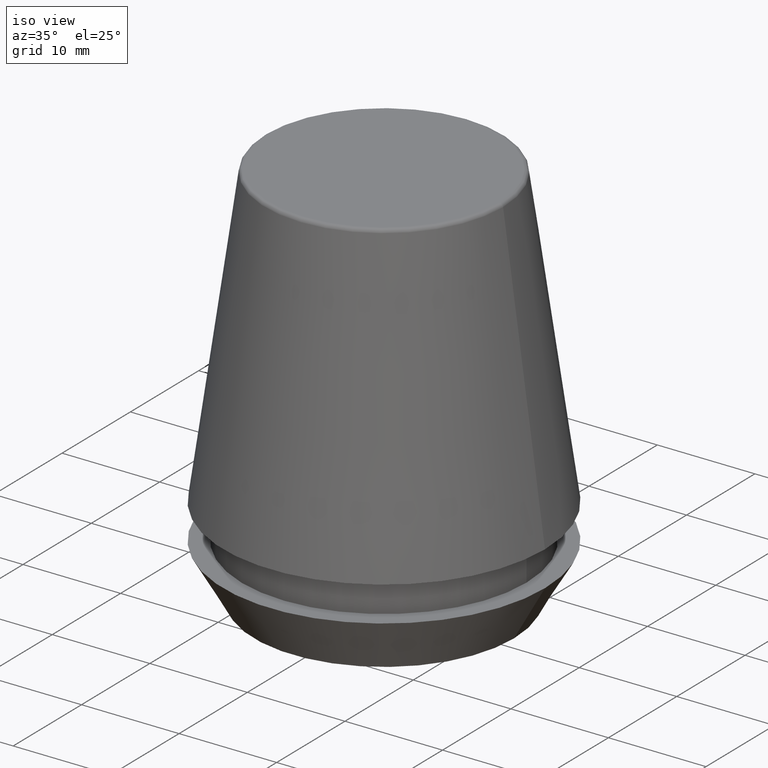
[diagram: clean part render]
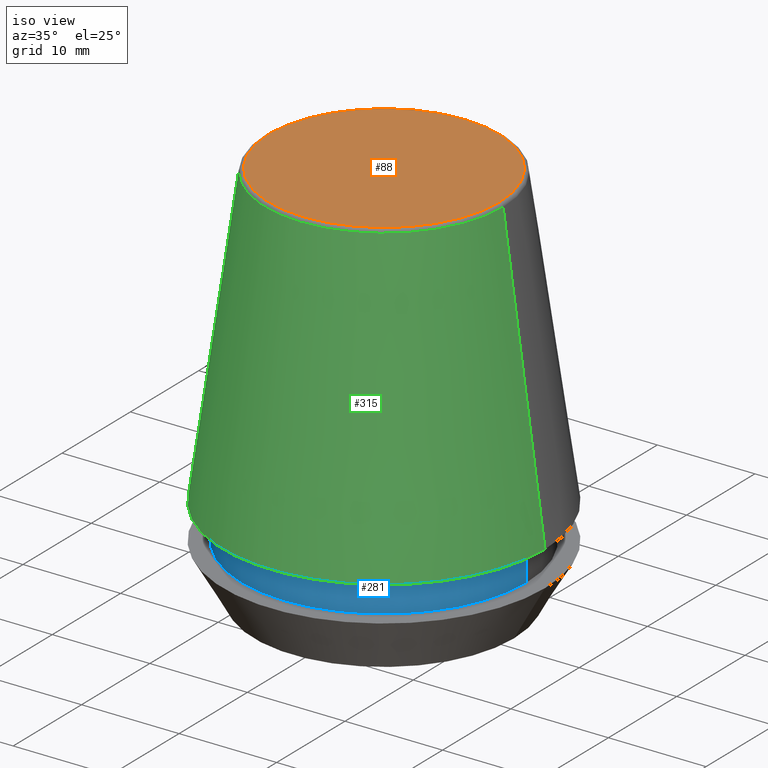
[diagram: same view with three faces highlighted in distinct colors, each labeled with its STEP entity id]
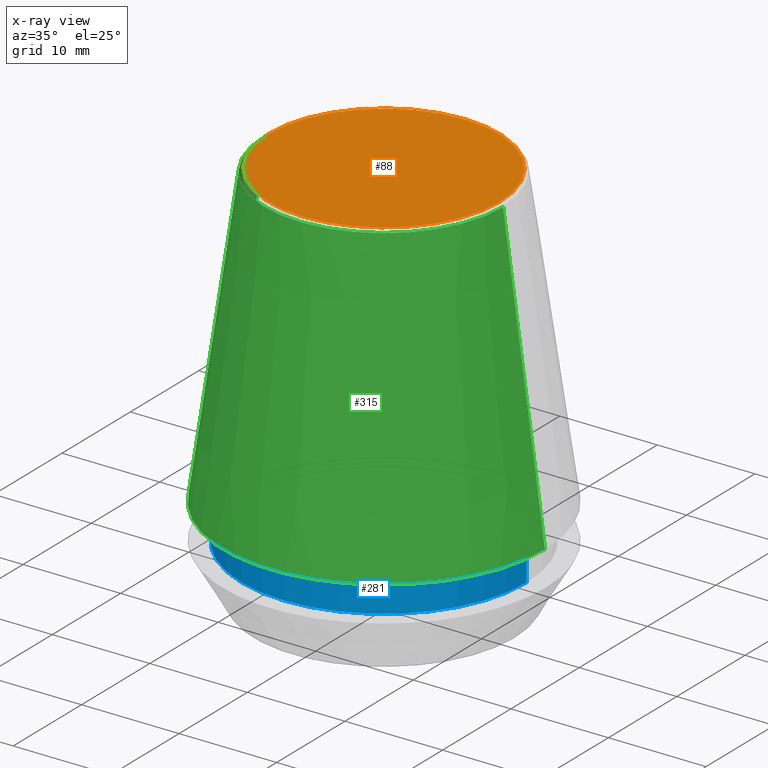
[diagram: x-ray of the same camera — body ghosted, the three highlighted faces saturated]
A machine part, iso view with three faces highlighted in distinct colors.
The next image is the same camera in x-ray (body ghosted, the three faces saturated) — at least one of them is partly hidden behind the body in this view.
Their STEP definitions:

[orange] entity #88 — the highlighted planar face has unit normal (0, 0, -1).
#20 = VERTEX_POINT ( 'NONE', #53 ) ;
#36 = CARTESIAN_POINT ( 'NONE',  ( 0.0000000000000000000, 0.0000000000000000000, 40.00000000000000700 ) ) ;
#37 = AXIS2_PLACEMENT_3D ( 'NONE', #284, #300, #114 ) ;
#42 = DIRECTION ( 'NONE',  ( -0.0000000000000000000, -0.0000000000000000000, 1.000000000000000000 ) ) ;
#53 = CARTESIAN_POINT ( 'NONE',  ( 11.80989888411031400, 0.0000000000000000000, 40.00000000000000700 ) ) ;
#61 = DIRECTION ( 'NONE',  ( 1.000000000000000000, 0.0000000000000000000, 0.0000000000000000000 ) ) ;
#62 = AXIS2_PLACEMENT_3D ( 'NONE', #36, #173, #61 ) ;
#71 = AXIS2_PLACEMENT_3D ( 'NONE', #180, #42, #171 ) ;
#75 = CARTESIAN_POINT ( 'NONE',  ( -11.80989888411031400, 1.470550059081603400E-015, 40.00000000000000700 ) ) ;
#84 = PLANE ( 'NONE',  #37 ) ;
#88 = ADVANCED_FACE ( 'NONE', ( #262 ), #84, .F. ) ;
#114 = DIRECTION ( 'NONE',  ( -1.000000000000000000, 0.0000000000000000000, -0.0000000000000000000 ) ) ;
#132 = CIRCLE ( 'NONE', #71, 11.80989888411031400 ) ;
#165 = EDGE_CURVE ( 'NONE', #20, #225, #132, .T. ) ;
#171 = DIRECTION ( 'NONE',  ( 1.000000000000000000, 0.0000000000000000000, 0.0000000000000000000 ) ) ;
#173 = DIRECTION ( 'NONE',  ( -0.0000000000000000000, -0.0000000000000000000, 1.000000000000000000 ) ) ;
#180 = CARTESIAN_POINT ( 'NONE',  ( 0.0000000000000000000, 0.0000000000000000000, 40.00000000000000700 ) ) ;
#194 = ORIENTED_EDGE ( 'NONE', *, *, #165, .T. ) ;
#204 = CIRCLE ( 'NONE', #62, 11.80989888411031400 ) ;
#225 = VERTEX_POINT ( 'NONE', #75 ) ;
#248 = EDGE_LOOP ( 'NONE', ( #194, #314 ) ) ;
#262 = FACE_OUTER_BOUND ( 'NONE', #248, .T. ) ;
#284 = CARTESIAN_POINT ( 'NONE',  ( 0.0000000000000000000, 11.80989888411031400, 40.00000000000000700 ) ) ;
#300 = DIRECTION ( 'NONE',  ( 0.0000000000000000000, 0.0000000000000000000, -1.000000000000000000 ) ) ;
#314 = ORIENTED_EDGE ( 'NONE', *, *, #359, .T. ) ;
#359 = EDGE_CURVE ( 'NONE', #225, #20, #204, .T. ) ;

[blue] entity #281 — the highlighted cylindrical surface (partial cylindrical patch) has radius 14.6 mm, axis along (-0, -0, 1).
#1 = EDGE_CURVE ( 'NONE', #123, #70, #239, .T. ) ;
#50 = CARTESIAN_POINT ( 'NONE',  ( 0.0000000000000000000, 0.0000000000000000000, 101.8074564848000400 ) ) ;
#70 = VERTEX_POINT ( 'NONE', #365 ) ;
#77 = CARTESIAN_POINT ( 'NONE',  ( 14.60000000000000000, 0.0000000000000000000, 9.099999999999997900 ) ) ;
#80 = DIRECTION ( 'NONE',  ( -0.0000000000000000000, -0.0000000000000000000, 1.000000000000000000 ) ) ;
#91 = ORIENTED_EDGE ( 'NONE', *, *, #1, .T. ) ;
#100 = LINE ( 'NONE', #364, #212 ) ;
#108 = DIRECTION ( 'NONE',  ( -0.0000000000000000000, -0.0000000000000000000, 1.000000000000000000 ) ) ;
#109 = DIRECTION ( 'NONE',  ( -0.0000000000000000000, -0.0000000000000000000, 1.000000000000000000 ) ) ;
#111 = AXIS2_PLACEMENT_3D ( 'NONE', #50, #109, #235 ) ;
#112 = CARTESIAN_POINT ( 'NONE',  ( 0.0000000000000000000, 0.0000000000000000000, 5.500000000000005300 ) ) ;
#119 = LINE ( 'NONE', #199, #319 ) ;
#123 = VERTEX_POINT ( 'NONE', #335 ) ;
#124 = EDGE_CURVE ( 'NONE', #223, #288, #138, .T. ) ;
#137 = CYLINDRICAL_SURFACE ( 'NONE', #111, 14.60000000000000000 ) ;
#138 = CIRCLE ( 'NONE', #243, 14.60000000000000000 ) ;
#154 = ORIENTED_EDGE ( 'NONE', *, *, #158, .T. ) ;
#157 = FACE_OUTER_BOUND ( 'NONE', #162, .T. ) ;
#158 = EDGE_CURVE ( 'NONE', #70, #288, #119, .T. ) ;
#162 = EDGE_LOOP ( 'NONE', ( #203, #91, #154, #290 ) ) ;
#199 = CARTESIAN_POINT ( 'NONE',  ( 14.60000000000000000, 0.0000000000000000000, 101.8074564848000400 ) ) ;
#203 = ORIENTED_EDGE ( 'NONE', *, *, #304, .F. ) ;
#212 = VECTOR ( 'NONE', #108, 1000.000000000000000 ) ;
#220 = DIRECTION ( 'NONE',  ( 1.000000000000000000, 0.0000000000000000000, 0.0000000000000000000 ) ) ;
#223 = VERTEX_POINT ( 'NONE', #382 ) ;
#226 = DIRECTION ( 'NONE',  ( -0.0000000000000000000, -0.0000000000000000000, 1.000000000000000000 ) ) ;
#235 = DIRECTION ( 'NONE',  ( 1.000000000000000000, 0.0000000000000000000, 0.0000000000000000000 ) ) ;
#239 = CIRCLE ( 'NONE', #377, 14.60000000000000000 ) ;
#243 = AXIS2_PLACEMENT_3D ( 'NONE', #282, #276, #291 ) ;
#276 = DIRECTION ( 'NONE',  ( -0.0000000000000000000, -0.0000000000000000000, 1.000000000000000000 ) ) ;
#281 = ADVANCED_FACE ( 'NONE', ( #157 ), #137, .T. ) ;
#282 = CARTESIAN_POINT ( 'NONE',  ( 0.0000000000000000000, 0.0000000000000000000, 9.099999999999997900 ) ) ;
#288 = VERTEX_POINT ( 'NONE', #77 ) ;
#290 = ORIENTED_EDGE ( 'NONE', *, *, #124, .F. ) ;
#291 = DIRECTION ( 'NONE',  ( 1.000000000000000000, 0.0000000000000000000, 0.0000000000000000000 ) ) ;
#304 = EDGE_CURVE ( 'NONE', #123, #223, #100, .T. ) ;
#319 = VECTOR ( 'NONE', #226, 1000.000000000000000 ) ;
#335 = CARTESIAN_POINT ( 'NONE',  ( -14.60000000000000000, 1.787984326755135800E-015, 5.500000000000005300 ) ) ;
#364 = CARTESIAN_POINT ( 'NONE',  ( -14.60000000000000000, 1.787984326755135800E-015, 101.8074564848000400 ) ) ;
#365 = CARTESIAN_POINT ( 'NONE',  ( 14.60000000000000000, 0.0000000000000000000, 5.500000000000005300 ) ) ;
#377 = AXIS2_PLACEMENT_3D ( 'NONE', #112, #80, #220 ) ;
#382 = CARTESIAN_POINT ( 'NONE',  ( -14.60000000000000000, 1.787984326755135800E-015, 9.099999999999997900 ) ) ;

[green] entity #315 — the highlighted conical surface has half-angle 8 deg.
#11 = ORIENTED_EDGE ( 'NONE', *, *, #141, .T. ) ;
#32 = CARTESIAN_POINT ( 'NONE',  ( -12.20600611160694300, 0.0000000000000000000, 39.65566924038402900 ) ) ;
#34 = EDGE_LOOP ( 'NONE', ( #159, #85, #238, #11 ) ) ;
#35 = CARTESIAN_POINT ( 'NONE',  ( -16.50032537154048700, 0.0000000000000000000, 9.099999999999997900 ) ) ;
#40 = VECTOR ( 'NONE', #87, 1000.000000000000000 ) ;
#49 = FACE_OUTER_BOUND ( 'NONE', #34, .T. ) ;
#52 = DIRECTION ( 'NONE',  ( 0.1391731009600586900, 1.704378926181473100E-017, -0.9902680687415712500 ) ) ;
#67 = AXIS2_PLACEMENT_3D ( 'NONE', #163, #110, #342 ) ;
#68 = LINE ( 'NONE', #232, #76 ) ;
#74 = LINE ( 'NONE', #134, #40 ) ;
#76 = VECTOR ( 'NONE', #52, 1000.000000000000000 ) ;
#79 = EDGE_CURVE ( 'NONE', #323, #244, #74, .T. ) ;
#85 = ORIENTED_EDGE ( 'NONE', *, *, #182, .F. ) ;
#87 = DIRECTION ( 'NONE',  ( -0.1391731009600586900, 0.0000000000000000000, -0.9902680687415712500 ) ) ;
#110 = DIRECTION ( 'NONE',  ( -0.0000000000000000000, -0.0000000000000000000, 1.000000000000000000 ) ) ;
#113 = AXIS2_PLACEMENT_3D ( 'NONE', #292, #227, #188 ) ;
#126 = DIRECTION ( 'NONE',  ( 1.000000000000000000, 0.0000000000000000000, 0.0000000000000000000 ) ) ;
#134 = CARTESIAN_POINT ( 'NONE',  ( -16.50032537154048700, 0.0000000000000000000, 9.099999999999997900 ) ) ;
#141 = EDGE_CURVE ( 'NONE', #244, #338, #230, .T. ) ;
#142 = CARTESIAN_POINT ( 'NONE',  ( 0.0000000000000000000, 0.0000000000000000000, 39.65566924038402900 ) ) ;
#148 = EDGE_CURVE ( 'NONE', #331, #338, #68, .T. ) ;
#159 = ORIENTED_EDGE ( 'NONE', *, *, #148, .F. ) ;
#163 = CARTESIAN_POINT ( 'NONE',  ( 0.0000000000000000000, 0.0000000000000000000, 9.099999999999997900 ) ) ;
#182 = EDGE_CURVE ( 'NONE', #323, #331, #366, .T. ) ;
#188 = DIRECTION ( 'NONE',  ( -1.000000000000000000, 0.0000000000000000000, 0.0000000000000000000 ) ) ;
#192 = DIRECTION ( 'NONE',  ( -0.0000000000000000000, -0.0000000000000000000, 1.000000000000000000 ) ) ;
#197 = CARTESIAN_POINT ( 'NONE',  ( 16.50032537154048700, 2.020707065114692300E-015, 9.099999999999997900 ) ) ;
#227 = DIRECTION ( 'NONE',  ( 0.0000000000000000000, 0.0000000000000000000, -1.000000000000000000 ) ) ;
#230 = CIRCLE ( 'NONE', #67, 16.50032537154048700 ) ;
#232 = CARTESIAN_POINT ( 'NONE',  ( 16.50032537154048700, 2.020707065114692300E-015, 9.099999999999997900 ) ) ;
#238 = ORIENTED_EDGE ( 'NONE', *, *, #79, .T. ) ;
#244 = VERTEX_POINT ( 'NONE', #35 ) ;
#256 = AXIS2_PLACEMENT_3D ( 'NONE', #142, #192, #126 ) ;
#268 = CARTESIAN_POINT ( 'NONE',  ( 12.20600611160694300, 1.757755848304969800E-015, 39.65566924038402900 ) ) ;
#292 = CARTESIAN_POINT ( 'NONE',  ( 0.0000000000000000000, 0.0000000000000000000, 9.099999999999997900 ) ) ;
#315 = ADVANCED_FACE ( 'NONE', ( #49 ), #353, .T. ) ;
#323 = VERTEX_POINT ( 'NONE', #32 ) ;
#331 = VERTEX_POINT ( 'NONE', #268 ) ;
#338 = VERTEX_POINT ( 'NONE', #197 ) ;
#342 = DIRECTION ( 'NONE',  ( 1.000000000000000000, 0.0000000000000000000, 0.0000000000000000000 ) ) ;
#353 = CONICAL_SURFACE ( 'NONE', #113, 16.50032537154048700, 0.1396263401595395900 ) ;
#366 = CIRCLE ( 'NONE', #256, 12.20600611160694300 ) ;